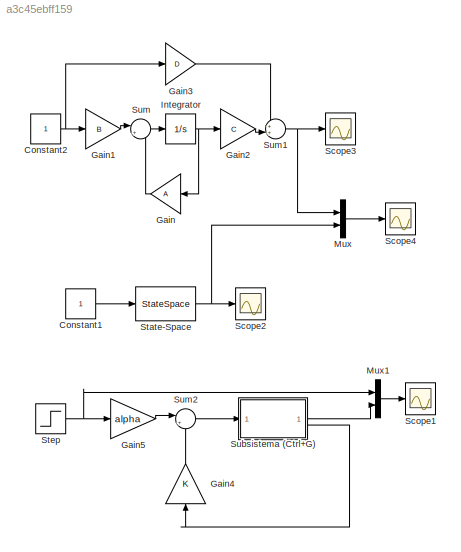
MODEL slx_a3c45ebff159
KIND model
CONFIG AbsTol = auto
CONFIG EnableMultiTasking = on
CONFIG FixedStep = auto
CONFIG MaxStep = auto
CONFIG MinStep = auto
CONFIG RelTol = 1e-3
CONFIG SampleTimeConstraint = Unconstrained
CONFIG SolverName = ode45
CONFIG StartTime = 0.0
CONFIG StopTime = 3
BLOCK [Constant] Constant1
BLOCK [Constant] Constant2
BLOCK [Gain] Gain
  Gain = A
  Multiplication = Matrix(K*u)
  NameLocation = top
BLOCK [Gain] Gain1
  Gain = B
  Multiplication = Matrix(K*u)
BLOCK [Gain] Gain2
  Gain = C
  Multiplication = Matrix(K*u)
BLOCK [Gain] Gain3
  Gain = D
  Multiplication = Matrix(K*u)
BLOCK [Gain] Gain4
  Gain = K
  Multiplication = Matrix(K*u)
  NameLocation = right
BLOCK [Gain] Gain5
  Gain = alpha
BLOCK [Integrator] Integrator
  InitialCondition = x0
BLOCK [Mux] Mux
  DisplayOption = bar
  Inputs = 2
BLOCK [Mux] Mux1
  DisplayOption = bar
  Inputs = 2
BLOCK [Scope] Scope1
  Floating = off
  NumInputPorts = 1
  ScopeSpecificationString = Simulink.scopes.TimeScopeBlockCfg('CurrentConfiguration', extmgr.ConfigurationSet(extmgr.Configuration('Core','General UI',true,'FigureColor',[1 1 1]),extmgr.Configuration('Core','Source UI',true),extmgr.Configuration('Sources','WiredSimulink',true,'DataLoggingVariableName','ScopeData1','DataLoggingSaveFormat','StructureWithTime','DataLoggingLimitDataPoints',true,'DataLoggingDecimation','1','DataL...<+1904ch>
BLOCK [Scope] Scope2
  Floating = off
  NumInputPorts = 1
  ScopeSpecificationString = Simulink.scopes.TimeScopeBlockCfg('CurrentConfiguration', extmgr.ConfigurationSet(extmgr.Configuration('Core','General UI',true,'FigureColor',[1 1 1]),extmgr.Configuration('Core','Source UI',true),extmgr.Configuration('Sources','WiredSimulink',true,'DataLoggingVariableName','ScopeData2','DataLoggingSaveFormat','StructureWithTime','DataLoggingLimitDataPoints',true,'DataLoggingDecimation','1','DataL...<+1820ch>
BLOCK [Scope] Scope3
  Floating = off
  NumInputPorts = 1
  ScopeSpecificationString = Simulink.scopes.TimeScopeBlockCfg('CurrentConfiguration', extmgr.ConfigurationSet(extmgr.Configuration('Core','General UI',true,'FigureColor',[1 1 1]),extmgr.Configuration('Core','Source UI',true),extmgr.Configuration('Sources','WiredSimulink',true,'DataLoggingVariableName','ScopeData3','DataLoggingSaveFormat','StructureWithTime','DataLoggingLimitDataPoints',true,'DataLoggingDecimation','1','DataL...<+1816ch>
BLOCK [Scope] Scope4
  Floating = off
  NumInputPorts = 1
  ScopeSpecificationString = Simulink.scopes.TimeScopeBlockCfg('CurrentConfiguration', extmgr.ConfigurationSet(extmgr.Configuration('Core','General UI',true,'FigureColor',[1 1 1]),extmgr.Configuration('Core','Source UI',true),extmgr.Configuration('Sources','WiredSimulink',true,'DataLoggingVariableName','ScopeData1','DataLoggingSaveFormat','StructureWithTime','DataLoggingLimitDataPoints',true,'DataLoggingDecimation','1','DataL...<+1916ch>
BLOCK [StateSpace] State-Space
  A = A
  B = B
  C = C
  D = D
  InitialCondition = x0
BLOCK [Step] Step
  After = r
  SampleTime = 0
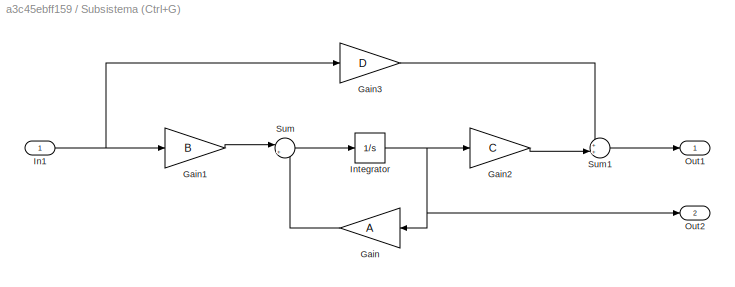
BLOCK [SubSystem] Subsistema (Ctrl+G)
BLOCK [Gain] Subsistema (Ctrl+G)/Gain
  Gain = A
  Multiplication = Matrix(K*u)
  NameLocation = top
BLOCK [Gain] Subsistema (Ctrl+G)/Gain1
  Gain = B
  Multiplication = Matrix(K*u)
BLOCK [Gain] Subsistema (Ctrl+G)/Gain2
  Gain = C
  Multiplication = Matrix(K*u)
BLOCK [Gain] Subsistema (Ctrl+G)/Gain3
  Gain = D
  Multiplication = Matrix(K*u)
BLOCK [Inport] Subsistema (Ctrl+G)/In1
BLOCK [Integrator] Subsistema (Ctrl+G)/Integrator
  InitialCondition = x0
BLOCK [Outport] Subsistema (Ctrl+G)/Out1
BLOCK [Outport] Subsistema (Ctrl+G)/Out2
  Port = 2
BLOCK [Sum] Subsistema (Ctrl+G)/Sum
  Inputs = |++
BLOCK [Sum] Subsistema (Ctrl+G)/Sum1
  Inputs = ++|
BLOCK [Sum] Sum
  Inputs = |++
BLOCK [Sum] Sum1
  Inputs = ++|
BLOCK [Sum] Sum2
  Inputs = |+-
LINE Constant1:1 -> State-Space:1
NET Constant2:1 -> Gain1:1, Gain3:1
LINE Gain1:1 -> Sum:1
LINE Gain2:1 -> Sum1:2
LINE Gain3:1 -> Sum1:1
LINE Gain4:1 -> Sum2:2
LINE Gain5:1 -> Sum2:1
LINE Gain:1 -> Sum:2
NET Integrator:1 -> Gain2:1, Gain:1
LINE Mux1:1 -> Scope1:1
LINE Mux:1 -> Scope4:1
NET State-Space:1 -> Mux:2, Scope2:1
NET Step:1 -> Gain5:1, Mux1:1
LINE Subsistema (Ctrl+G)/Gain1:1 -> Subsistema (Ctrl+G)/Sum:1
LINE Subsistema (Ctrl+G)/Gain2:1 -> Subsistema (Ctrl+G)/Sum1:2
LINE Subsistema (Ctrl+G)/Gain3:1 -> Subsistema (Ctrl+G)/Sum1:1
LINE Subsistema (Ctrl+G)/Gain:1 -> Subsistema (Ctrl+G)/Sum:2
NET Subsistema (Ctrl+G)/In1:1 -> Subsistema (Ctrl+G)/Gain1:1, Subsistema (Ctrl+G)/Gain3:1
NET Subsistema (Ctrl+G)/Integrator:1 -> Subsistema (Ctrl+G)/Gain2:1, Subsistema (Ctrl+G)/Gain:1, Subsistema (Ctrl+G)/Out2:1
LINE Subsistema (Ctrl+G)/Sum1:1 -> Subsistema (Ctrl+G)/Out1:1
LINE Subsistema (Ctrl+G)/Sum:1 -> Subsistema (Ctrl+G)/Integrator:1
LINE Subsistema (Ctrl+G):1 -> Mux1:2
LINE Subsistema (Ctrl+G):2 -> Gain4:1
NET Sum1:1 -> Mux:1, Scope3:1
LINE Sum2:1 -> Subsistema (Ctrl+G):1
LINE Sum:1 -> Integrator:1
note: NET lines group one-source signal fan-out (src -> all destinations, sorted); 1:1 wires keep LINE
